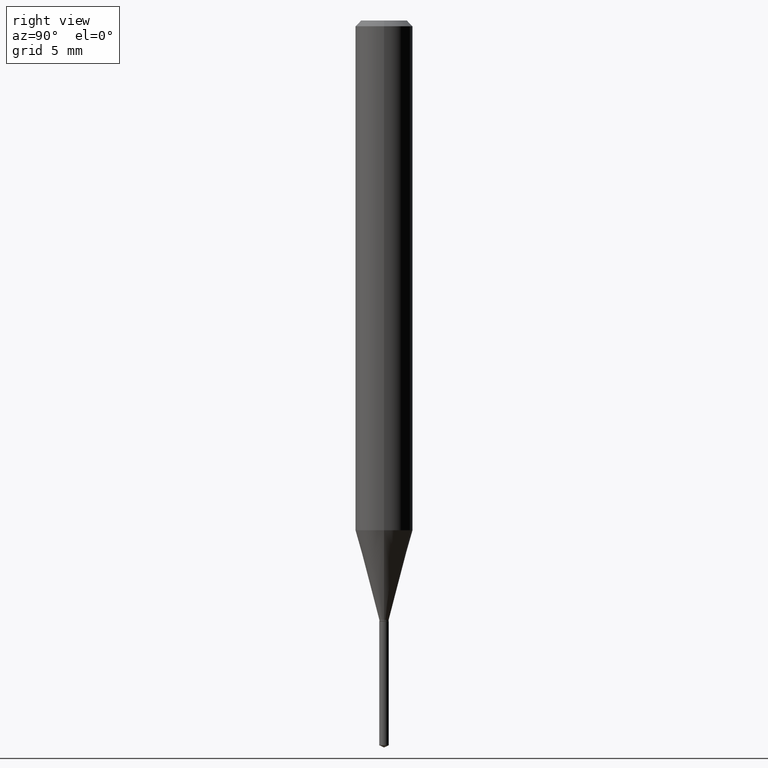
[diagram: clean part render]
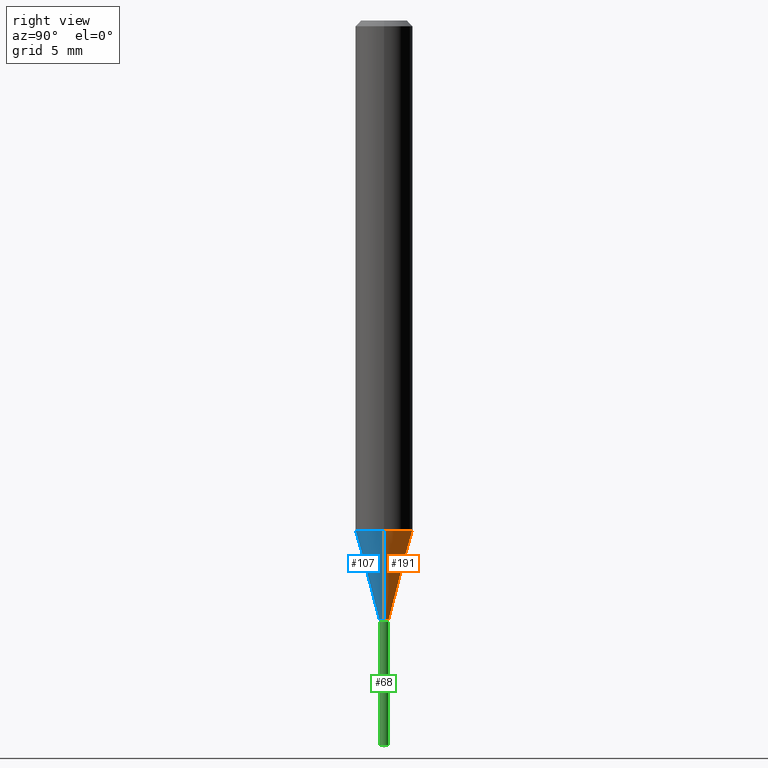
[diagram: same view with three faces highlighted in distinct colors, each labeled with its STEP entity id]
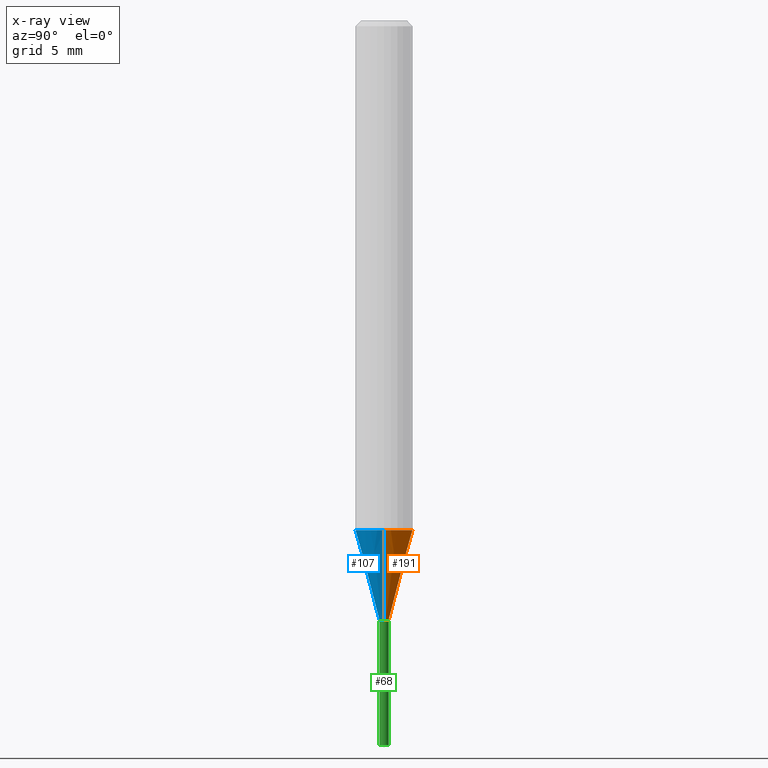
[diagram: x-ray of the same camera — body ghosted, the three highlighted faces saturated]
A machine part, right view with three faces highlighted in distinct colors.
The next image is the same camera in x-ray (body ghosted, the three faces saturated) — at least one of them is partly hidden behind the body in this view.
Their STEP definitions:

[orange] entity #191 — the highlighted conical surface has half-angle 15 deg.
#12 = DIRECTION ( 'NONE',  ( 0.2588190451025211281, 1.565188264969622954E-15, 0.9659258262890679791 ) ) ;
#21 = DIRECTION ( 'NONE',  ( -2.445468806185136597E-29, 3.491481338843145583E-15, 1.000000000000000000 ) ) ;
#27 = CARTESIAN_POINT ( 'NONE',  ( 3.016241225548747360E-29, -4.306393083329135397E-15, -1.233400000000000052 ) ) ;
#29 = FACE_OUTER_BOUND ( 'NONE', #224, .T. ) ;
#31 = LINE ( 'NONE', #359, #468 ) ;
#32 = CONICAL_SURFACE ( 'NONE', #141, 0.009650000000000000591, 0.2617993877991498519 ) ;
#35 = CARTESIAN_POINT ( 'NONE',  ( -0.009650000000000000591, -4.242015486934897790E-15, -1.233400000000000052 ) ) ;
#36 = EDGE_CURVE ( 'NONE', #44, #407, #390, .T. ) ;
#44 = VERTEX_POINT ( 'NONE', #426 ) ;
#70 = DIRECTION ( 'NONE',  ( -0.2588190451025211281, 5.211531920934547886E-15, 0.9659258262890679791 ) ) ;
#73 = DIRECTION ( 'NONE',  ( 1.000000000000000000, -6.982962677686237523E-15, 0.000000000000000000 ) ) ;
#91 = CARTESIAN_POINT ( 'NONE',  ( 0.009650000000000000591, -4.373778673168807802E-15, -1.233400000000000052 ) ) ;
#95 = VERTEX_POINT ( 'NONE', #35 ) ;
#96 = AXIS2_PLACEMENT_3D ( 'NONE', #177, #21, #470 ) ;
#141 = AXIS2_PLACEMENT_3D ( 'NONE', #27, #173, #474 ) ;
#153 = AXIS2_PLACEMENT_3D ( 'NONE', #449, #330, #73 ) ;
#162 = ORIENTED_EDGE ( 'NONE', *, *, #419, .T. ) ;
#173 = DIRECTION ( 'NONE',  ( -2.445468806185136597E-29, 3.491481338843145583E-15, 1.000000000000000000 ) ) ;
#177 = CARTESIAN_POINT ( 'NONE',  ( 2.565386502198165089E-29, -3.662692027267218578E-15, -1.049036690106097236 ) ) ;
#185 = EDGE_CURVE ( 'NONE', #95, #409, #31, .T. ) ;
#189 = CARTESIAN_POINT ( 'NONE',  ( 0.05905000000000013016, -4.075035973384593498E-15, -1.049036690106097236 ) ) ;
#191 = ADVANCED_FACE ( 'NONE', ( #29 ), #32, .T. ) ;
#200 = ORIENTED_EDGE ( 'NONE', *, *, #185, .T. ) ;
#222 = CARTESIAN_POINT ( 'NONE',  ( -0.05905000000000013016, -3.243116541800878691E-15, -1.049036690106097236 ) ) ;
#224 = EDGE_LOOP ( 'NONE', ( #162, #200, #418, #235 ) ) ;
#235 = ORIENTED_EDGE ( 'NONE', *, *, #36, .F. ) ;
#240 = CIRCLE ( 'NONE', #96, 0.05905000000000013016 ) ;
#282 = EDGE_CURVE ( 'NONE', #407, #409, #240, .T. ) ;
#301 = VECTOR ( 'NONE', #12, 39.37007874015748854 ) ;
#330 = DIRECTION ( 'NONE',  ( -2.445468806185136597E-29, 3.491481338843145583E-15, 1.000000000000000000 ) ) ;
#359 = CARTESIAN_POINT ( 'NONE',  ( -0.009650000000000000591, -4.237825709328286181E-15, -1.233400000000000052 ) ) ;
#366 = CIRCLE ( 'NONE', #153, 0.009650000000000000591 ) ;
#390 = LINE ( 'NONE', #91, #301 ) ;
#407 = VERTEX_POINT ( 'NONE', #189 ) ;
#409 = VERTEX_POINT ( 'NONE', #222 ) ;
#418 = ORIENTED_EDGE ( 'NONE', *, *, #282, .F. ) ;
#419 = EDGE_CURVE ( 'NONE', #44, #95, #366, .T. ) ;
#426 = CARTESIAN_POINT ( 'NONE',  ( 0.009650000000000000591, -4.373778673168807802E-15, -1.233400000000000052 ) ) ;
#449 = CARTESIAN_POINT ( 'NONE',  ( 3.016241225548747360E-29, -4.306393083329135397E-15, -1.233400000000000052 ) ) ;
#468 = VECTOR ( 'NONE', #70, 39.37007874015748854 ) ;
#470 = DIRECTION ( 'NONE',  ( 1.000000000000000000, -6.982962677686265133E-15, 0.000000000000000000 ) ) ;
#474 = DIRECTION ( 'NONE',  ( 1.000000000000000000, -6.982962677686237523E-15, 0.000000000000000000 ) ) ;

[blue] entity #107 — the highlighted conical surface has half-angle 15 deg.
#12 = DIRECTION ( 'NONE',  ( 0.2588190451025211281, 1.565188264969622954E-15, 0.9659258262890679791 ) ) ;
#31 = LINE ( 'NONE', #359, #468 ) ;
#35 = CARTESIAN_POINT ( 'NONE',  ( -0.009650000000000000591, -4.242015486934897790E-15, -1.233400000000000052 ) ) ;
#36 = EDGE_CURVE ( 'NONE', #44, #407, #390, .T. ) ;
#44 = VERTEX_POINT ( 'NONE', #426 ) ;
#65 = AXIS2_PLACEMENT_3D ( 'NONE', #320, #471, #98 ) ;
#70 = DIRECTION ( 'NONE',  ( -0.2588190451025211281, 5.211531920934547886E-15, 0.9659258262890679791 ) ) ;
#91 = CARTESIAN_POINT ( 'NONE',  ( 0.009650000000000000591, -4.373778673168807802E-15, -1.233400000000000052 ) ) ;
#95 = VERTEX_POINT ( 'NONE', #35 ) ;
#98 = DIRECTION ( 'NONE',  ( 1.000000000000000000, -6.982962677686237523E-15, 0.000000000000000000 ) ) ;
#107 = ADVANCED_FACE ( 'NONE', ( #168 ), #405, .T. ) ;
#137 = DIRECTION ( 'NONE',  ( -2.445468806185136597E-29, 3.491481338843145583E-15, 1.000000000000000000 ) ) ;
#146 = ORIENTED_EDGE ( 'NONE', *, *, #36, .T. ) ;
#158 = ORIENTED_EDGE ( 'NONE', *, *, #329, .T. ) ;
#168 = FACE_OUTER_BOUND ( 'NONE', #368, .T. ) ;
#184 = ORIENTED_EDGE ( 'NONE', *, *, #185, .F. ) ;
#185 = EDGE_CURVE ( 'NONE', #95, #409, #31, .T. ) ;
#189 = CARTESIAN_POINT ( 'NONE',  ( 0.05905000000000013016, -4.075035973384593498E-15, -1.049036690106097236 ) ) ;
#203 = AXIS2_PLACEMENT_3D ( 'NONE', #355, #254, #251 ) ;
#216 = CARTESIAN_POINT ( 'NONE',  ( 3.016241225548747360E-29, -4.306393083329135397E-15, -1.233400000000000052 ) ) ;
#222 = CARTESIAN_POINT ( 'NONE',  ( -0.05905000000000013016, -3.243116541800878691E-15, -1.049036690106097236 ) ) ;
#223 = EDGE_CURVE ( 'NONE', #409, #407, #461, .T. ) ;
#251 = DIRECTION ( 'NONE',  ( 1.000000000000000000, -6.982962677686265133E-15, 0.000000000000000000 ) ) ;
#254 = DIRECTION ( 'NONE',  ( -2.445468806185136597E-29, 3.491481338843145583E-15, 1.000000000000000000 ) ) ;
#266 = ORIENTED_EDGE ( 'NONE', *, *, #223, .F. ) ;
#301 = VECTOR ( 'NONE', #12, 39.37007874015748854 ) ;
#320 = CARTESIAN_POINT ( 'NONE',  ( 3.016241225548747360E-29, -4.306393083329135397E-15, -1.233400000000000052 ) ) ;
#329 = EDGE_CURVE ( 'NONE', #95, #44, #397, .T. ) ;
#355 = CARTESIAN_POINT ( 'NONE',  ( 2.565386502198165089E-29, -3.662692027267218578E-15, -1.049036690106097236 ) ) ;
#357 = DIRECTION ( 'NONE',  ( 1.000000000000000000, -6.982962677686237523E-15, 0.000000000000000000 ) ) ;
#359 = CARTESIAN_POINT ( 'NONE',  ( -0.009650000000000000591, -4.237825709328286181E-15, -1.233400000000000052 ) ) ;
#368 = EDGE_LOOP ( 'NONE', ( #184, #158, #146, #266 ) ) ;
#390 = LINE ( 'NONE', #91, #301 ) ;
#397 = CIRCLE ( 'NONE', #469, 0.009650000000000000591 ) ;
#405 = CONICAL_SURFACE ( 'NONE', #65, 0.009650000000000000591, 0.2617993877991498519 ) ;
#407 = VERTEX_POINT ( 'NONE', #189 ) ;
#409 = VERTEX_POINT ( 'NONE', #222 ) ;
#426 = CARTESIAN_POINT ( 'NONE',  ( 0.009650000000000000591, -4.373778673168807802E-15, -1.233400000000000052 ) ) ;
#461 = CIRCLE ( 'NONE', #203, 0.05905000000000013016 ) ;
#468 = VECTOR ( 'NONE', #70, 39.37007874015748854 ) ;
#469 = AXIS2_PLACEMENT_3D ( 'NONE', #216, #137, #357 ) ;
#471 = DIRECTION ( 'NONE',  ( -2.445468806185136597E-29, 3.491481338843145583E-15, 1.000000000000000000 ) ) ;

[green] entity #68 — the highlighted cylindrical surface (edge-blend (fillet) strip) has radius 0.2451 mm, axis along (-0, 0, 1).
#10 = EDGE_CURVE ( 'NONE', #295, #371, #47, .T. ) ;
#39 = DIRECTION ( 'NONE',  ( -2.445453492125453683E-29, 3.491503269448233447E-15, 1.000000000000000000 ) ) ;
#47 = LINE ( 'NONE', #125, #327 ) ;
#67 = DIRECTION ( 'NONE',  ( -6.982962677686265133E-15, -1.000000000000000000, 0.000000000000000000 ) ) ;
#68 = ADVANCED_FACE ( 'NONE', ( #465 ), #93, .T. ) ;
#81 = CIRCLE ( 'NONE', #454, 0.009650000000000000591 ) ;
#84 = ORIENTED_EDGE ( 'NONE', *, *, #10, .F. ) ;
#93 = CYLINDRICAL_SURFACE ( 'NONE', #212, 0.009650000000000000591 ) ;
#102 = CARTESIAN_POINT ( 'NONE',  ( 3.647657682222341556E-29, -5.207899621633818646E-15, -1.491600131098804072 ) ) ;
#115 = DIRECTION ( 'NONE',  ( -6.982962677686265133E-15, -1.000000000000000000, 0.000000000000000000 ) ) ;
#125 = CARTESIAN_POINT ( 'NONE',  ( -6.738558983964223041E-17, -0.009650000000004314848, -1.236299999999999955 ) ) ;
#130 = DIRECTION ( 'NONE',  ( -2.445453492125453683E-29, 3.491503269448233447E-15, 1.000000000000000000 ) ) ;
#160 = AXIS2_PLACEMENT_3D ( 'NONE', #102, #288, #67 ) ;
#164 = LINE ( 'NONE', #172, #383 ) ;
#172 = CARTESIAN_POINT ( 'NONE',  ( 6.856737400087989537E-17, 0.009649999999995684599, -1.236299999999999955 ) ) ;
#212 = AXIS2_PLACEMENT_3D ( 'NONE', #246, #130, #243 ) ;
#243 = DIRECTION ( 'NONE',  ( -6.982962677686265133E-15, -1.000000000000000000, 0.000000000000000000 ) ) ;
#244 = EDGE_CURVE ( 'NONE', #295, #334, #373, .T. ) ;
#246 = CARTESIAN_POINT ( 'NONE',  ( 3.023333085086683703E-29, -4.316518379211780118E-15, -1.236299999999999955 ) ) ;
#247 = DIRECTION ( 'NONE',  ( -2.445453492125453683E-29, 3.491503269448233447E-15, 1.000000000000000000 ) ) ;
#253 = CARTESIAN_POINT ( 'NONE',  ( 6.856737400088613230E-17, 0.009649999999994794686, -1.491600131098804072 ) ) ;
#271 = DIRECTION ( 'NONE',  ( -2.445453492125453683E-29, 3.491503269448233447E-15, 1.000000000000000000 ) ) ;
#277 = VERTEX_POINT ( 'NONE', #325 ) ;
#284 = CARTESIAN_POINT ( 'NONE',  ( -6.738558983963599348E-17, -0.009650000000005208231, -1.491600131098804072 ) ) ;
#288 = DIRECTION ( 'NONE',  ( -2.445453492125453683E-29, 3.491503269448233447E-15, 1.000000000000000000 ) ) ;
#295 = VERTEX_POINT ( 'NONE', #284 ) ;
#296 = CARTESIAN_POINT ( 'NONE',  ( 3.023333085086683703E-29, -4.316518379211780118E-15, -1.236299999999999955 ) ) ;
#298 = ORIENTED_EDGE ( 'NONE', *, *, #347, .T. ) ;
#325 = CARTESIAN_POINT ( 'NONE',  ( 6.856737400088616928E-17, 0.009649999999995684599, -1.236299999999999955 ) ) ;
#327 = VECTOR ( 'NONE', #271, 39.37007874015748143 ) ;
#334 = VERTEX_POINT ( 'NONE', #253 ) ;
#347 = EDGE_CURVE ( 'NONE', #334, #277, #164, .T. ) ;
#370 = CARTESIAN_POINT ( 'NONE',  ( -6.738558983964223041E-17, -0.009650000000004314848, -1.236299999999999955 ) ) ;
#371 = VERTEX_POINT ( 'NONE', #370 ) ;
#373 = CIRCLE ( 'NONE', #160, 0.009650000000000000591 ) ;
#383 = VECTOR ( 'NONE', #247, 39.37007874015748143 ) ;
#416 = ORIENTED_EDGE ( 'NONE', *, *, #428, .F. ) ;
#428 = EDGE_CURVE ( 'NONE', #371, #277, #81, .T. ) ;
#448 = EDGE_LOOP ( 'NONE', ( #484, #298, #416, #84 ) ) ;
#454 = AXIS2_PLACEMENT_3D ( 'NONE', #296, #39, #115 ) ;
#465 = FACE_OUTER_BOUND ( 'NONE', #448, .T. ) ;
#484 = ORIENTED_EDGE ( 'NONE', *, *, #244, .T. ) ;